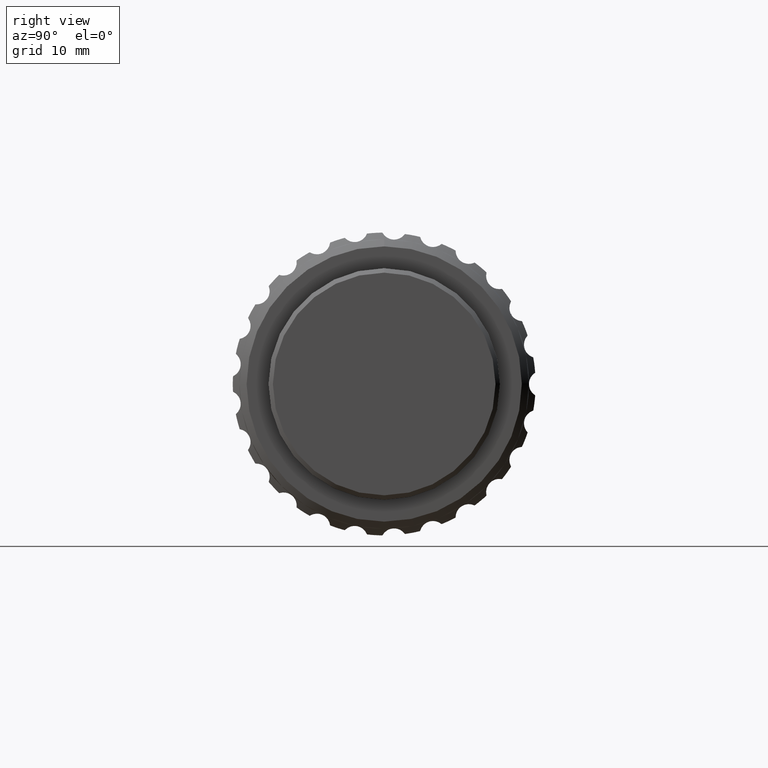
[diagram: clean part render]
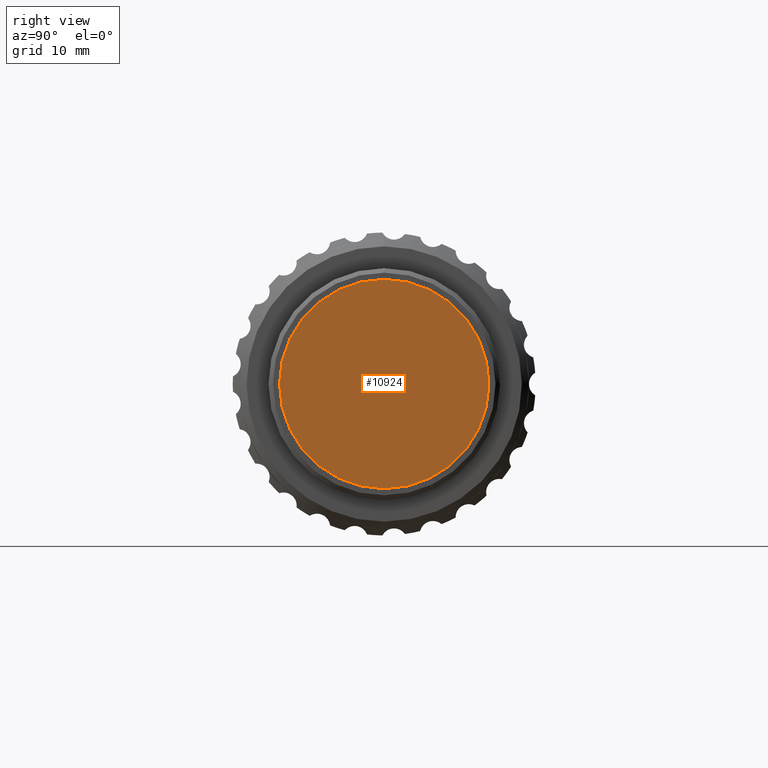
[diagram: same view with one face highlighted and labeled with its STEP entity id]
A machine part, right view. The second image highlights one B-rep face of the part: STEP entity #10924.
In plain terms, the highlighted planar face has unit normal (-1, 0, -0).
Its self-contained STEP definition (entity closure, byte-faithful):
#3357 = DIRECTION ( 'NONE',  ( 0.000000000000000000, 0.000000000000000000, 1.000000000000000000 ) ) ;
#4649 = CARTESIAN_POINT ( 'NONE',  ( 100.4999999999999858, 0.000000000000000000, 0.000000000000000000 ) ) ;
#4956 = EDGE_LOOP ( 'NONE', ( #21266, #14806 ) ) ;
#8193 = FACE_OUTER_BOUND ( 'NONE', #4956, .T. ) ;
#9728 = DIRECTION ( 'NONE',  ( -1.000000000000000000, -0.000000000000000000, -0.000000000000000000 ) ) ;
#10924 = ADVANCED_FACE ( 'NONE', ( #8193 ), #30919, .F. ) ;
#12853 = CIRCLE ( 'NONE', #20982, 11.75000000000000000 ) ;
#14498 = DIRECTION ( 'NONE',  ( 0.000000000000000000, 0.000000000000000000, 1.000000000000000000 ) ) ;
#14806 = ORIENTED_EDGE ( 'NONE', *, *, #22189, .F. ) ;
#17090 = CARTESIAN_POINT ( 'NONE',  ( 100.4999999999999858, 0.000000000000000000, 11.75000000000000000 ) ) ;
#20193 = CARTESIAN_POINT ( 'NONE',  ( 100.4999999999999858, 0.000000000000000000, 0.000000000000000000 ) ) ;
#20982 = AXIS2_PLACEMENT_3D ( 'NONE', #4649, #9728, #14498 ) ;
#21266 = ORIENTED_EDGE ( 'NONE', *, *, #31120, .F. ) ;
#22189 = EDGE_CURVE ( 'NONE', #26163, #26873, #30046, .T. ) ;
#23909 = CARTESIAN_POINT ( 'NONE',  ( 100.4999999999999858, 0.000000000000000000, -11.75000000000000000 ) ) ;
#24970 = AXIS2_PLACEMENT_3D ( 'NONE', #20193, #27525, #3357 ) ;
#25862 = CARTESIAN_POINT ( 'NONE',  ( 100.4999999999999858, 1.438959988998140160E-15, -11.75000000000000000 ) ) ;
#25991 = DIRECTION ( 'NONE',  ( -1.000000000000000000, 0.000000000000000000, -0.000000000000000000 ) ) ;
#26163 = VERTEX_POINT ( 'NONE', #25862 ) ;
#26298 = DIRECTION ( 'NONE',  ( -0.000000000000000000, 0.000000000000000000, 1.000000000000000000 ) ) ;
#26873 = VERTEX_POINT ( 'NONE', #17090 ) ;
#27525 = DIRECTION ( 'NONE',  ( -1.000000000000000000, -0.000000000000000000, -0.000000000000000000 ) ) ;
#27686 = AXIS2_PLACEMENT_3D ( 'NONE', #23909, #25991, #26298 ) ;
#30046 = CIRCLE ( 'NONE', #24970, 11.75000000000000000 ) ;
#30919 = PLANE ( 'NONE',  #27686 ) ;
#31120 = EDGE_CURVE ( 'NONE', #26873, #26163, #12853, .T. ) ;